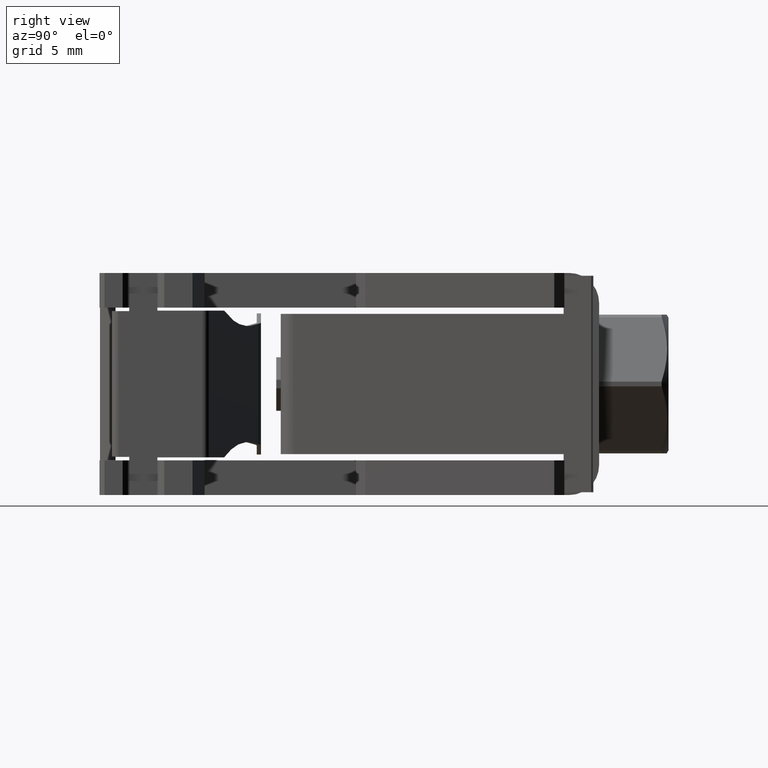
[diagram: clean part render]
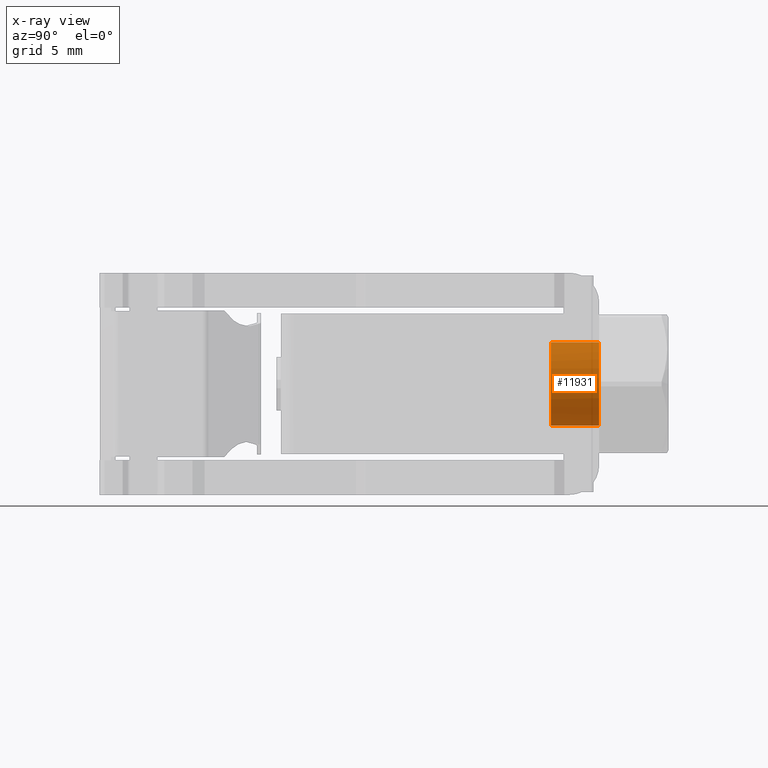
[diagram: x-ray — body ghosted, one internal face saturated and labeled with its STEP entity id]
A machine part, right view, then the same camera in x-ray: the body is ghosted and one INTERNAL B-rep face — a face not visible from any outside direction — is saturated and labeled: STEP entity #11931.
In plain terms, the highlighted cylindrical surface (partial cylindrical patch) has radius 3 mm, axis along (0, 1, 0).
Its self-contained STEP definition (entity closure, byte-faithful):
#937 = VECTOR ( 'NONE', #5137, 1000.000000000000000 ) ;
#968 = VECTOR ( 'NONE', #5562, 1000.000000000000000 ) ;
#1456 = AXIS2_PLACEMENT_3D ( 'NONE', #6524, #6935, #6042 ) ;
#1581 = FACE_OUTER_BOUND ( 'NONE', #9220, .T. ) ;
#2260 = CARTESIAN_POINT ( 'NONE',  ( 9.746278230129222600, 31.14155947559808300, 6.999999999999545300 ) ) ;
#2269 = CARTESIAN_POINT ( 'NONE',  ( 9.746278230129222600, 31.14155947559808300, 1.000000000000455400 ) ) ;
#2792 = CARTESIAN_POINT ( 'NONE',  ( 9.746278230129222600, 34.62833341091004500, 6.999999999999545300 ) ) ;
#2827 = CARTESIAN_POINT ( 'NONE',  ( 9.746278230129222600, 34.62833341091004500, 1.000000000000455400 ) ) ;
#2891 = CYLINDRICAL_SURFACE ( 'NONE', #1456, 2.999999999999544800 ) ;
#4899 = CARTESIAN_POINT ( 'NONE',  ( 9.746278230129222600, 31.14155947559808300, 6.999999999999545300 ) ) ;
#4902 = CARTESIAN_POINT ( 'NONE',  ( 9.937103094143132900, 31.14155947559807900, 1.000067471720747800 ) ) ;
#4903 = CARTESIAN_POINT ( 'NONE',  ( 12.52687088998791200, 31.14155947559808300, 2.873568774374112500 ) ) ;
#4904 = CARTESIAN_POINT ( 'NONE',  ( 12.55292995305832300, 31.14155947559808600, 5.059851800467561700 ) ) ;
#4906 = CARTESIAN_POINT ( 'NONE',  ( 12.49610921195699800, 31.14155947559808300, 2.800264543247033400 ) ) ;
#4907 = CARTESIAN_POINT ( 'NONE',  ( 12.38674468556809300, 31.14155947559808600, 2.568617323776762900 ) ) ;
#4911 = CARTESIAN_POINT ( 'NONE',  ( 9.746278230129222600, 31.14155947559808300, 1.000000000000455400 ) ) ;
#4912 = CARTESIAN_POINT ( 'NONE',  ( 12.46502289962070100, 31.14155947559808300, 2.729628015473467800 ) ) ;
#4914 = CARTESIAN_POINT ( 'NONE',  ( 10.21825725823924800, 31.14155947559807900, 1.026447462612550200 ) ) ;
#4919 = CARTESIAN_POINT ( 'NONE',  ( 10.80619194813680800, 31.14155947559807900, 1.193372777334974700 ) ) ;
#4921 = CARTESIAN_POINT ( 'NONE',  ( 12.74631192078918600, 31.14155947559807200, 4.190569204493782800 ) ) ;
#4922 = CARTESIAN_POINT ( 'NONE',  ( 12.64319901630602400, 31.14155947559808300, 4.790761185567010500 ) ) ;
#4924 = CARTESIAN_POINT ( 'NONE',  ( 12.20721431639118700, 31.14155947559808600, 2.261827432816472700 ) ) ;
#4925 = CARTESIAN_POINT ( 'NONE',  ( 11.23539227909370200, 31.14155947559808300, 1.362909147059091700 ) ) ;
#4926 = CARTESIAN_POINT ( 'NONE',  ( 10.69470995388789600, 31.14155947559808300, 1.153091220564264500 ) ) ;
#4927 = CARTESIAN_POINT ( 'NONE',  ( 12.51628642158424900, 31.14155947559808300, 2.847718216344484100 ) ) ;
#4928 = CARTESIAN_POINT ( 'NONE',  ( 12.59326446201269300, 31.14155947559808300, 4.948235984438575500 ) ) ;
#4930 = CARTESIAN_POINT ( 'NONE',  ( 10.82651048879723100, 31.14155947559807900, 1.201117968672759600 ) ) ;
#4931 = CARTESIAN_POINT ( 'NONE',  ( 12.54516026145660300, 31.14155947559808300, 5.080232258667910700 ) ) ;
#4932 = CARTESIAN_POINT ( 'NONE',  ( 12.38336908306783900, 31.14155947559807900, 5.489114048966097700 ) ) ;
#4933 = CARTESIAN_POINT ( 'NONE',  ( 11.57490123340374800, 31.14155947559808300, 1.586087371278897900 ) ) ;
#4935 = CARTESIAN_POINT ( 'NONE',  ( 12.74621084880792500, 31.14155947559808300, 3.618861591012430400 ) ) ;
#4936 = CARTESIAN_POINT ( 'NONE',  ( 12.16019085884517100, 31.14155947559807600, 5.828623003279006700 ) ) ;
#4937 = CARTESIAN_POINT ( 'NONE',  ( 12.67599902656683000, 31.14155947559807900, 3.250069422361495900 ) ) ;
#4938 = CARTESIAN_POINT ( 'NONE',  ( 11.72130243111023300, 31.14155947559808300, 6.267669013699475900 ) ) ;
#4941 = CARTESIAN_POINT ( 'NONE',  ( 10.94601368688337400, 31.14155947559808300, 6.749830981826746300 ) ) ;
#4942 = CARTESIAN_POINT ( 'NONE',  ( 12.72000780168291500, 31.14155947559808600, 4.471531623949803500 ) ) ;
#4943 = CARTESIAN_POINT ( 'NONE',  ( 10.89856001378536000, 31.14155947559808300, 6.770008191454487600 ) ) ;
#4945 = CARTESIAN_POINT ( 'NONE',  ( 10.87269879451815100, 31.14155947559807600, 6.780596882667755800 ) ) ;
#4947 = CARTESIAN_POINT ( 'NONE',  ( 10.53737496881640600, 31.14155947559809000, 1.103211989447878500 ) ) ;
#4948 = CARTESIAN_POINT ( 'NONE',  ( 10.76166268958630600, 31.14155947559807600, 1.176931669835298100 ) ) ;
#4949 = CARTESIAN_POINT ( 'NONE',  ( 12.01394724383094300, 31.14155947559807900, 2.024975799021569300 ) ) ;
#4950 = CARTESIAN_POINT ( 'NONE',  ( 11.48445079731726500, 31.14155947559808600, 6.460936086258036500 ) ) ;
#4951 = CARTESIAN_POINT ( 'NONE',  ( 11.17766090635583600, 31.14155947559808300, 6.640466455435931600 ) ) ;
#4952 = CARTESIAN_POINT ( 'NONE',  ( 11.01665021465772700, 31.14155947559807900, 6.718744669489765900 ) ) ;
#4953 = CARTESIAN_POINT ( 'NONE',  ( 10.12828467799714000, 31.14155947559807600, 6.999864930430210700 ) ) ;
#4954 = CARTESIAN_POINT ( 'NONE',  ( 10.49637938755895700, 31.14155947559807200, 6.929653231492653600 ) ) ;
#4955 = CARTESIAN_POINT ( 'NONE',  ( 12.56939318982878400, 31.14155947559808600, 5.015266616397026300 ) ) ;
#4958 = CARTESIAN_POINT ( 'NONE',  ( 11.58991839005368800, 34.62833341091026500, 6.399000527194178100 ) ) ;
#4960 = CARTESIAN_POINT ( 'NONE',  ( 9.746278230129222600, 34.62833341091004500, 1.000000000000455400 ) ) ;
#4962 = CARTESIAN_POINT ( 'NONE',  ( 11.25713517124169300, 34.62833341091027300, 6.621359165062375300 ) ) ;
#4963 = CARTESIAN_POINT ( 'NONE',  ( 10.53152188320694200, 34.62833341091025800, 6.921918030004503600 ) ) ;
#4965 = CARTESIAN_POINT ( 'NONE',  ( 10.13897731182788900, 34.62833341091026500, 6.999999999999543500 ) ) ;
#4969 = CARTESIAN_POINT ( 'NONE',  ( 9.746278230129222600, 34.62833341091004500, 6.999999999999545300 ) ) ;
#4985 = CARTESIAN_POINT ( 'NONE',  ( 10.13897731182788700, 34.62833341091028000, 1.000000000000455200 ) ) ;
#4987 = CARTESIAN_POINT ( 'NONE',  ( 10.53152188320694400, 34.62833341091027300, 1.078081969995496400 ) ) ;
#4992 = CARTESIAN_POINT ( 'NONE',  ( 11.58991839005368400, 34.62833341091025800, 1.600999472805823400 ) ) ;
#4994 = CARTESIAN_POINT ( 'NONE',  ( 12.36763739519159300, 34.62833341091025800, 2.489143058887531200 ) ) ;
#4999 = CARTESIAN_POINT ( 'NONE',  ( 12.14527875732339600, 34.62833341091025800, 2.156359840075534200 ) ) ;
#5000 = CARTESIAN_POINT ( 'NONE',  ( 12.66819626013372100, 34.62833341091025800, 3.214756346922278000 ) ) ;
#5001 = CARTESIAN_POINT ( 'NONE',  ( 12.74627823012876400, 34.62833341091026500, 3.607300918301334900 ) ) ;
#5002 = CARTESIAN_POINT ( 'NONE',  ( 12.74627823012876800, 34.62833341091026500, 4.392699081698666000 ) ) ;
#5003 = CARTESIAN_POINT ( 'NONE',  ( 12.66819626013372800, 34.62833341091027300, 4.785243653077722900 ) ) ;
#5004 = CARTESIAN_POINT ( 'NONE',  ( 12.36763739519159900, 34.62833341091026500, 5.510856941112471000 ) ) ;
#5007 = CARTESIAN_POINT ( 'NONE',  ( 11.25713517124168900, 34.62833341091025100, 1.378640834937624000 ) ) ;
#5009 = CARTESIAN_POINT ( 'NONE',  ( 12.14527875732339800, 34.62833341091025800, 5.843640159924464500 ) ) ;
#5135 = CARTESIAN_POINT ( 'NONE',  ( 9.746278230129222600, 39.62833341091104700, 1.000000000000455400 ) ) ;
#5137 = DIRECTION ( 'NONE',  ( 0.0000000000000000000, 1.000000000000000000, 0.0000000000000000000 ) ) ;
#5142 = LINE ( 'NONE', #5135, #937 ) ;
#5237 = EDGE_CURVE ( 'NONE', #10111, #10150, #12407, .T. ) ;
#5262 = EDGE_CURVE ( 'NONE', #10085, #10087, #12422, .T. ) ;
#5321 = EDGE_CURVE ( 'NONE', #10111, #10085, #5142, .T. ) ;
#5425 = EDGE_CURVE ( 'NONE', #10150, #10087, #5523, .T. ) ;
#5497 = CARTESIAN_POINT ( 'NONE',  ( 9.746278230129222600, 39.62833341091104700, 6.999999999999544400 ) ) ;
#5523 = LINE ( 'NONE', #5497, #968 ) ;
#5562 = DIRECTION ( 'NONE',  ( 0.0000000000000000000, 1.000000000000000000, 0.0000000000000000000 ) ) ;
#6042 = DIRECTION ( 'NONE',  ( 0.0000000000000000000, 0.0000000000000000000, 1.000000000000000000 ) ) ;
#6524 = CARTESIAN_POINT ( 'NONE',  ( 9.746278230129222600, 39.62833341091104700, 4.000000000000000000 ) ) ;
#6935 = DIRECTION ( 'NONE',  ( 0.0000000000000000000, 1.000000000000000000, 0.0000000000000000000 ) ) ;
#9220 = EDGE_LOOP ( 'NONE', ( #10942, #10846, #10883, #10898 ) ) ;
#10085 = VERTEX_POINT ( 'NONE', #2827 ) ;
#10087 = VERTEX_POINT ( 'NONE', #2792 ) ;
#10111 = VERTEX_POINT ( 'NONE', #2269 ) ;
#10150 = VERTEX_POINT ( 'NONE', #2260 ) ;
#10846 = ORIENTED_EDGE ( 'NONE', *, *, #5321, .T. ) ;
#10883 = ORIENTED_EDGE ( 'NONE', *, *, #5262, .T. ) ;
#10898 = ORIENTED_EDGE ( 'NONE', *, *, #5425, .F. ) ;
#10942 = ORIENTED_EDGE ( 'NONE', *, *, #5237, .F. ) ;
#11931 = ADVANCED_FACE ( 'NONE', ( #1581 ), #2891, .T. ) ;
#12407 = B_SPLINE_CURVE_WITH_KNOTS ( 'NONE', 3,
 ( #4911, #4902, #4914, #4947, #4926, #4948, #4919, #4930, #4925, #4933, #4949, #4924, #4907, #4912, #4906, #4927, #4903, #4937, #4935, #4921, #4942, #4922, #4928, #4955, #4904, #4931, #4932, #4936, #4938, #4950, #4951, #4952, #4941, #4943, #4945, #4954, #4953, #4899 ),
 .UNSPECIFIED., .F., .F.,
 ( 4, 1, 1, 1, 2, 2, 2, 1, 1, 1, 2, 2, 2, 1, 1, 1, 2, 2, 2, 1, 1, 1, 2, 2, 4 ),
 ( 0.0000000000000000000, 0.06249999999999941700, 0.09374999999999884800, 0.1093749999999985700, 0.1171874999999984300, 0.1249999999999983100, 0.2499999999999984500, 0.3124999999999985000, 0.3437499999999986700, 0.3593749999999987200, 0.3671874999999986100, 0.3749999999999985600, 0.4999999999999992200, 0.5624999999999994400, 0.5937499999999993300, 0.6093749999999994400, 0.6171874999999994400, 0.6249999999999994400, 0.7499999999999991100, 0.8124999999999988900, 0.8437499999999986700, 0.8593749999999986700, 0.8671874999999987800, 0.8749999999999988900, 1.000000000000000000 ),
 .UNSPECIFIED. ) ;
#12422 = B_SPLINE_CURVE_WITH_KNOTS ( 'NONE', 3,
 ( #4960, #4985, #4987, #5007, #4992, #4999, #4994, #5000, #5001, #5002, #5003, #5004, #5009, #4958, #4962, #4963, #4965, #4969 ),
 .UNSPECIFIED., .F., .F.,
 ( 4, 2, 2, 2, 2, 2, 2, 2, 4 ),
 ( 0.0000000000000000000, 0.1249999999999999400, 0.2499999999999998900, 0.3749999999999998300, 0.4999999999999997800, 0.6249999999999997800, 0.7499999999999998900, 0.8749999999999998900, 1.000000000000000000 ),
 .UNSPECIFIED. ) ;